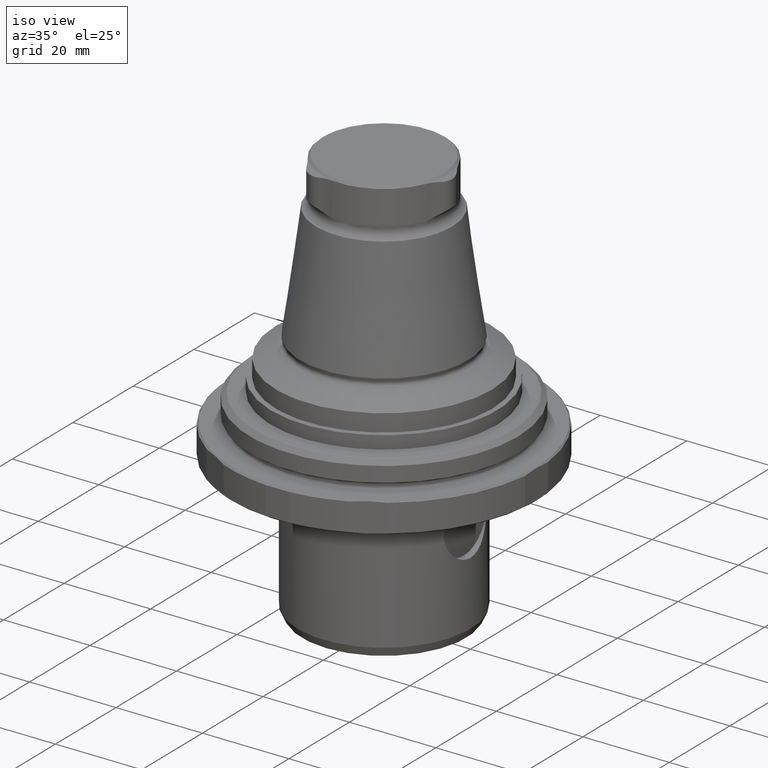
[diagram: clean part render]
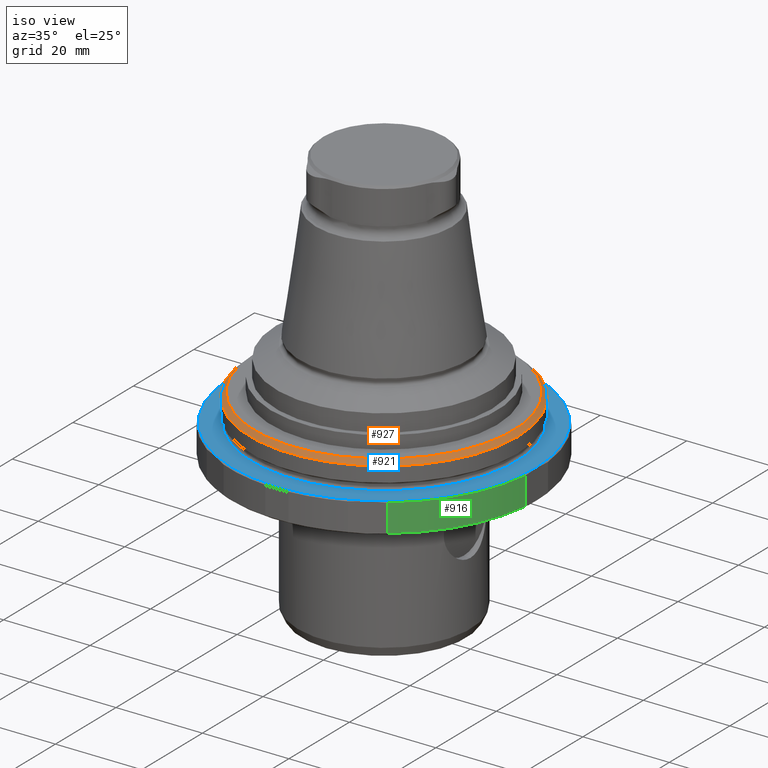
[diagram: same view with three faces highlighted in distinct colors, each labeled with its STEP entity id]
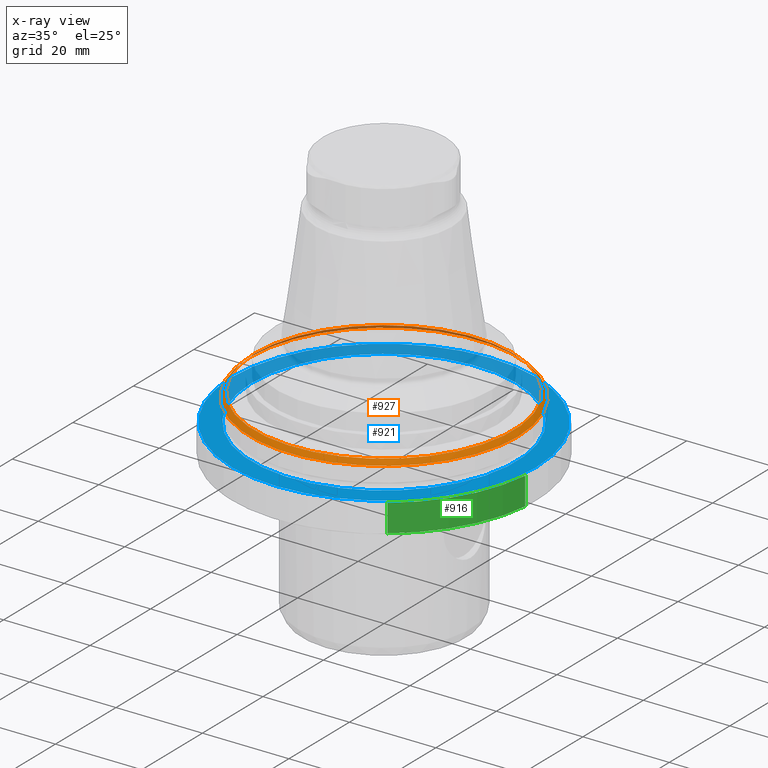
[diagram: x-ray of the same camera — body ghosted, the three highlighted faces saturated]
A machine part, iso view with three faces highlighted in distinct colors.
The next image is the same camera in x-ray (body ghosted, the three faces saturated) — at least one of them is partly hidden behind the body in this view.
Their STEP definitions:

[orange] entity #927 — the highlighted conical surface has half-angle 45 deg.
#154=CONICAL_SURFACE('',#1037,29.9757350979542,0.785398163397448);
#291=ORIENTED_EDGE('',*,*,#482,.F.);
#292=ORIENTED_EDGE('',*,*,#481,.T.);
#481=EDGE_CURVE('',#590,#590,#663,.T.);
#482=EDGE_CURVE('',#591,#591,#664,.T.);
#590=VERTEX_POINT('',#1597);
#591=VERTEX_POINT('',#1600);
#663=CIRCLE('',#1036,29.9757350979542);
#664=CIRCLE('',#1038,31.);
#734=EDGE_LOOP('',(#291));
#735=EDGE_LOOP('',(#292));
#830=FACE_BOUND('',#734,.T.);
#831=FACE_BOUND('',#735,.T.);
#927=ADVANCED_FACE('',(#830,#831),#154,.T.);
#1036=AXIS2_PLACEMENT_3D('',#1596,#1235,#1236);
#1037=AXIS2_PLACEMENT_3D('',#1598,#1237,#1238);
#1038=AXIS2_PLACEMENT_3D('',#1599,#1239,#1240);
#1235=DIRECTION('',(-5.47430718319515E-16,-9.52839907700963E-18,-1.));
#1236=DIRECTION('',(-1.,8.32667268468868E-16,5.47430716006892E-16));
#1237=DIRECTION('',(-5.47430718319515E-16,-9.52839907700963E-18,-1.));
#1238=DIRECTION('',(-1.,8.32667268468868E-16,5.47430716006892E-16));
#1239=DIRECTION('',(-5.47430718319515E-16,-9.52839907700963E-18,-1.));
#1240=DIRECTION('',(-1.,8.32667268468868E-16,5.47430716006892E-16));
#1596=CARTESIAN_POINT('',(-8.47396225606201E-14,-9.81042750828226E-14,5.32426490204586));
#1597=CARTESIAN_POINT('',(-29.9757350979542,-7.31444616184627E-14,5.32426490204587));
#1598=CARTESIAN_POINT('',(-8.47396225606201E-14,-9.81042750828226E-14,5.32426490204586));
#1599=CARTESIAN_POINT('',(-8.53003366316965E-14,-9.81140346875699E-14,4.30000000000001));
#1600=CARTESIAN_POINT('',(-31.0000000000001,-7.2301349365035E-14,4.30000000000003));

[blue] entity #921 — the highlighted planar face has unit normal (-0, -0, -1).
#279=ORIENTED_EDGE('',*,*,#476,.T.);
#280=ORIENTED_EDGE('',*,*,#431,.F.);
#431=EDGE_CURVE('',#556,#556,#643,.T.);
#476=EDGE_CURVE('',#585,#585,#658,.T.);
#556=VERTEX_POINT('',#1443);
#585=VERTEX_POINT('',#1582);
#643=CIRCLE('',#994,35.2);
#658=CIRCLE('',#1026,30.65);
#722=EDGE_LOOP('',(#279));
#723=EDGE_LOOP('',(#280));
#818=FACE_BOUND('',#722,.T.);
#819=FACE_BOUND('',#723,.T.);
#891=PLANE('',#1025);
#921=ADVANCED_FACE('',(#818,#819),#891,.F.);
#994=AXIS2_PLACEMENT_3D('',#1442,#1137,#1138);
#1025=AXIS2_PLACEMENT_3D('',#1580,#1213,#1214);
#1026=AXIS2_PLACEMENT_3D('',#1581,#1215,#1216);
#1137=DIRECTION('',(-5.47430718319515E-16,-9.52839907700963E-18,-1.));
#1138=DIRECTION('',(-1.,8.32667268468868E-16,5.47430716006892E-16));
#1213=DIRECTION('',(-5.47430718319515E-16,-9.52839907700963E-18,-1.));
#1214=DIRECTION('',(-1.,8.32667268468868E-16,5.47430716006892E-16));
#1215=DIRECTION('',(-5.47430718319515E-16,-9.52839907700963E-18,-1.));
#1216=DIRECTION('',(-1.,8.32667268468868E-16,5.47430716006892E-16));
#1442=CARTESIAN_POINT('',(-8.82017194387899E-14,-9.8164535202678E-14,-0.999999999999989));
#1443=CARTESIAN_POINT('',(-35.2000000000001,-6.88546473525739E-14,-0.99999999999997));
#1580=CARTESIAN_POINT('',(-30.6500000000001,-7.26432834241072E-14,-0.999999999999972));
#1581=CARTESIAN_POINT('',(-8.82017194387899E-14,-9.8164535202678E-14,-0.999999999999989));
#1582=CARTESIAN_POINT('',(-30.6500000000001,-7.26432834241072E-14,-0.999999999999972));

[green] entity #916 — the highlighted cylindrical surface (partial cylindrical patch) has radius 35.5 mm, axis along (-0, -0, -1).
#37=LINE('',#1572,#65);
#38=LINE('',#1573,#66);
#65=VECTOR('',#1201,1000.);
#66=VECTOR('',#1202,1000.);
#131=CYLINDRICAL_SURFACE('',#1020,35.5);
#259=ORIENTED_EDGE('',*,*,#461,.F.);
#260=ORIENTED_EDGE('',*,*,#472,.T.);
#261=ORIENTED_EDGE('',*,*,#435,.T.);
#262=ORIENTED_EDGE('',*,*,#473,.T.);
#435=EDGE_CURVE('',#561,#560,#645,.T.);
#461=EDGE_CURVE('',#582,#583,#656,.T.);
#472=EDGE_CURVE('',#582,#561,#37,.F.);
#473=EDGE_CURVE('',#560,#583,#38,.T.);
#560=VERTEX_POINT('',#1456);
#561=VERTEX_POINT('',#1458);
#582=VERTEX_POINT('',#1545);
#583=VERTEX_POINT('',#1547);
#645=CIRCLE('',#996,35.5);
#656=CIRCLE('',#1009,35.5);
#717=EDGE_LOOP('',(#259,#260,#261,#262));
#813=FACE_BOUND('',#717,.T.);
#916=ADVANCED_FACE('',(#813),#131,.T.);
#996=AXIS2_PLACEMENT_3D('',#1457,#1141,#1142);
#1009=AXIS2_PLACEMENT_3D('',#1546,#1169,#1170);
#1020=AXIS2_PLACEMENT_3D('',#1571,#1199,#1200);
#1141=DIRECTION('',(-5.47430718319515E-16,-9.52839907700963E-18,-1.));
#1142=DIRECTION('',(-1.,8.32667268468868E-16,5.47430716006892E-16));
#1169=DIRECTION('',(-5.47430718319515E-16,-9.52839907700963E-18,-1.));
#1170=DIRECTION('',(-1.,8.32667268468868E-16,5.47430716006892E-16));
#1199=DIRECTION('',(-5.47430718319515E-16,-9.52839907700963E-18,-1.));
#1200=DIRECTION('',(-1.,8.32667268468868E-16,5.47430716006892E-16));
#1201=DIRECTION('',(-5.47430718319515E-16,-9.52839907700963E-18,-1.));
#1202=DIRECTION('',(-5.47430718319515E-16,-9.52839907700962E-18,-1.));
#1456=CARTESIAN_POINT('',(20.90883414736,-28.6892079813681,-1.3));
#1457=CARTESIAN_POINT('',(-8.83659486542858E-14,-9.81673937224011E-14,-1.29999999999999));
#1458=CARTESIAN_POINT('',(35.2999999999999,-3.76297754444549,-1.30000000000001));
#1545=CARTESIAN_POINT('',(35.2999999999999,-3.76297754444549,-7.70000000000001));
#1546=CARTESIAN_POINT('',(-9.18695052515307E-14,-9.8228375476494E-14,-7.69999999999999));
#1547=CARTESIAN_POINT('',(20.90883414736,-28.6892079813681,-7.70000000000001));
#1571=CARTESIAN_POINT('',(-8.82017194387899E-14,-9.8164535202678E-14,-0.999999999999989));
#1572=CARTESIAN_POINT('',(35.2999999999999,-3.76297754444549,-1.00000000000001));
#1573=CARTESIAN_POINT('',(20.90883414736,-28.6892079813681,-1.));